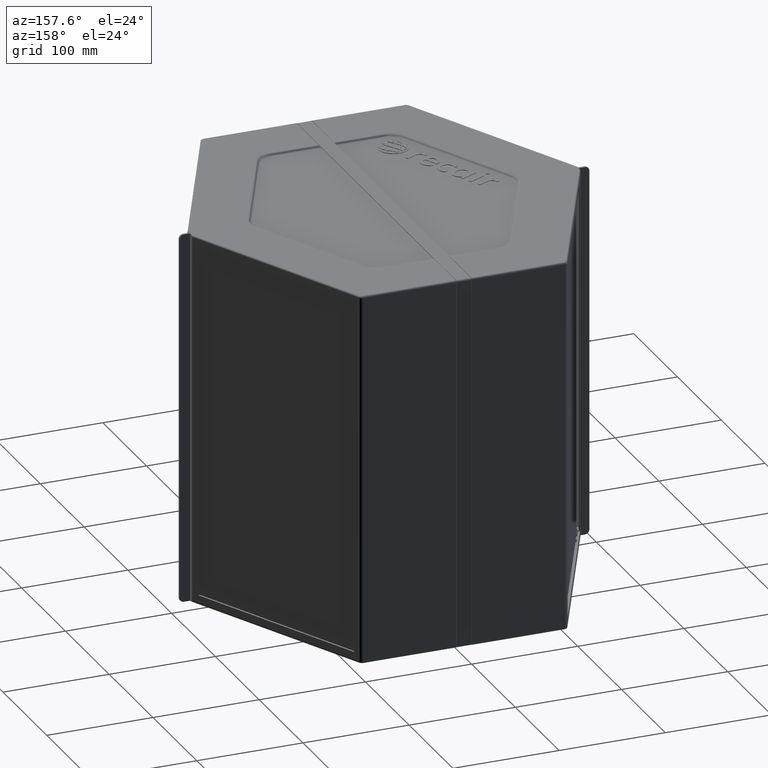
[diagram: clean part render]
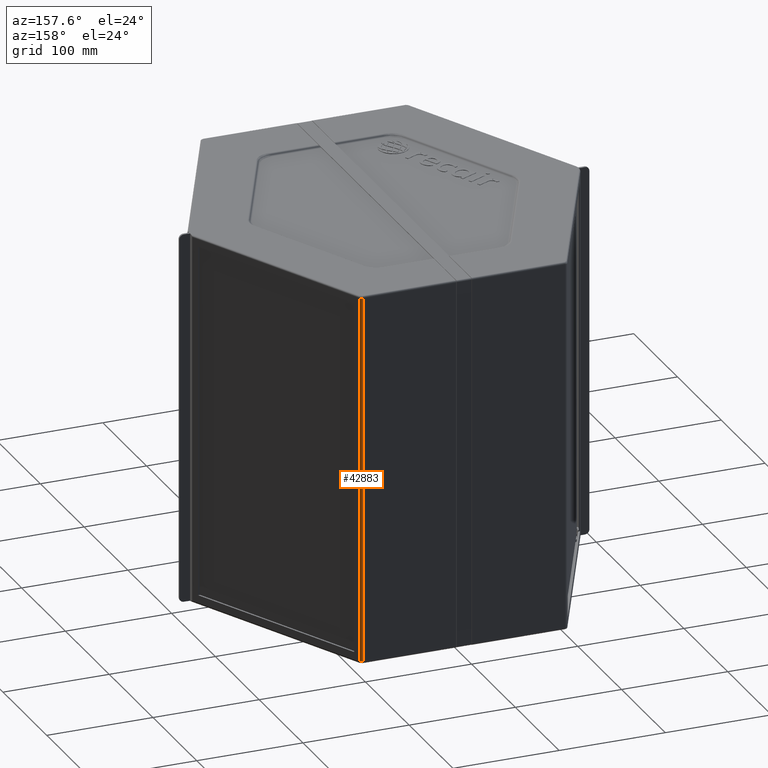
[diagram: same view with one face highlighted and labeled with its STEP entity id]
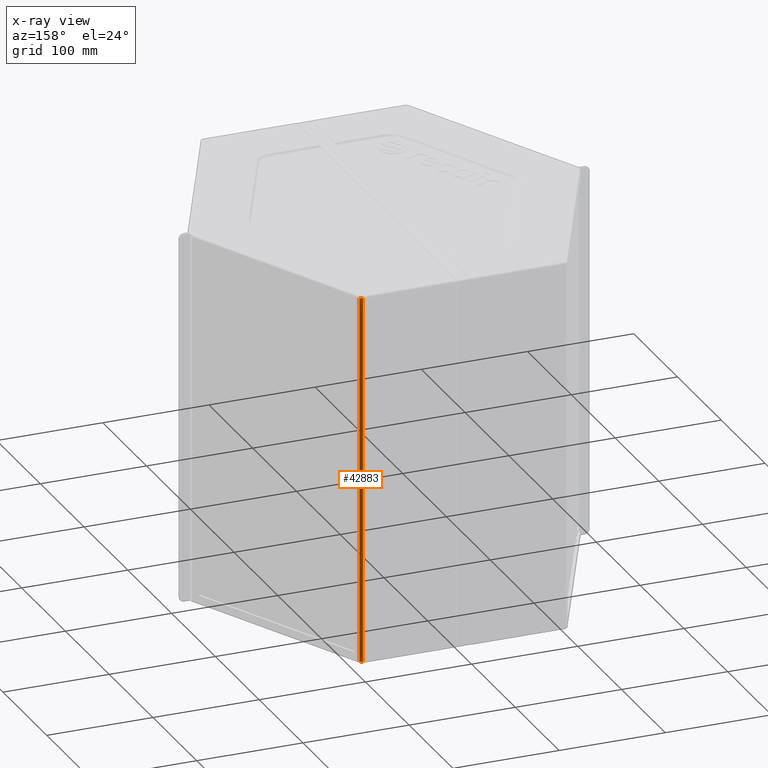
[diagram: x-ray of the same camera — body ghosted, the highlighted face saturated]
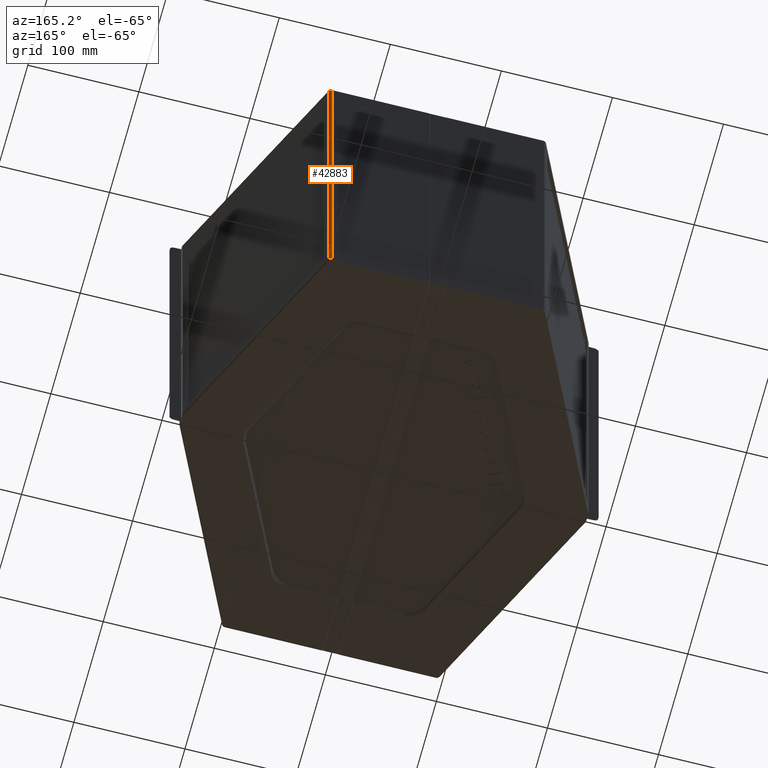
[diagram: same view with one face highlighted and labeled with its STEP entity id]
A machine part, auxiliary view. The second image highlights one B-rep face of the part: STEP entity #42883.
The next image is the same camera in x-ray: the body ghosted, the highlighted face saturated — about 0% of this face is hidden behind the body in this view.
A second angle (auxiliary view) of the same face is appended — the face is thin or edge-on in the first view.
In plain terms, the highlighted cylindrical surface (edge-blend (fillet) strip) has radius 3 mm, axis along (0, 0, -1).
Its self-contained STEP definition (entity closure, byte-faithful):
#573=ELLIPSE('',#44873,3.00099521039378,3.);
#574=ELLIPSE('',#44875,68.7767568781808,3.);
#585=ELLIPSE('',#44947,68.7767568781808,3.);
#599=ELLIPSE('',#45059,68.7767568781808,3.);
#621=ELLIPSE('',#45392,68.7767568781808,3.);
#622=ELLIPSE('',#45393,3.00099521039379,3.);
#4364=FACE_OUTER_BOUND('',#6670,.T.);
#6670=EDGE_LOOP('',(#34109,#34110,#34111,#34112,#34113,#34114,#34115,#34116));
#9047=LINE('',#60234,#13215);
#10124=LINE('',#76377,#14292);
#13215=VECTOR('',#49328,10.);
#14292=VECTOR('',#52067,10.);
#18103=VERTEX_POINT('',#60227);
#18106=VERTEX_POINT('',#60232);
#18734=VERTEX_POINT('',#68346);
#18735=VERTEX_POINT('',#68348);
#18736=VERTEX_POINT('',#68352);
#18854=VERTEX_POINT('',#69160);
#18855=VERTEX_POINT('',#69162);
#19381=VERTEX_POINT('',#76855);
#22447=EDGE_CURVE('',#18103,#18106,#9047,.T.);
#23484=EDGE_CURVE('',#18735,#18734,#573,.T.);
#23486=EDGE_CURVE('',#18736,#18735,#574,.T.);
#23553=EDGE_CURVE('',#18734,#18103,#585,.T.);
#23742=EDGE_CURVE('',#18855,#18854,#599,.T.);
#24512=EDGE_CURVE('',#18736,#18854,#10124,.T.);
#24604=EDGE_CURVE('',#18106,#19381,#621,.T.);
#24605=EDGE_CURVE('',#19381,#18855,#622,.T.);
#34109=ORIENTED_EDGE('',*,*,#24604,.T.);
#34110=ORIENTED_EDGE('',*,*,#24605,.T.);
#34111=ORIENTED_EDGE('',*,*,#23742,.T.);
#34112=ORIENTED_EDGE('',*,*,#24512,.F.);
#34113=ORIENTED_EDGE('',*,*,#23486,.T.);
#34114=ORIENTED_EDGE('',*,*,#23484,.T.);
#34115=ORIENTED_EDGE('',*,*,#23553,.T.);
#34116=ORIENTED_EDGE('',*,*,#22447,.T.);
#39292=CYLINDRICAL_SURFACE('',#45391,3.);
#42883=ADVANCED_FACE('',(#4364),#39292,.T.);
#44873=AXIS2_PLACEMENT_3D('',#68349,#50691,#50692);
#44875=AXIS2_PLACEMENT_3D('',#68353,#50696,#50697);
#44947=AXIS2_PLACEMENT_3D('',#68600,#50865,#50866);
#45059=AXIS2_PLACEMENT_3D('',#69163,#51235,#51236);
#45391=AXIS2_PLACEMENT_3D('',#76854,#52299,#52300);
#45392=AXIS2_PLACEMENT_3D('',#76856,#52301,#52302);
#45393=AXIS2_PLACEMENT_3D('',#76857,#52303,#52304);
#49328=DIRECTION('',(0.,0.,1.));
#50691=DIRECTION('center_axis',(0.0136938673238041,0.0218087503454172,0.999668373214882));
#50692=DIRECTION('ref_axis',(0.531591807028578,0.846609122975993,-0.0257515745909));
#50696=DIRECTION('center_axis',(-0.899840974177145,-0.43403176178455,0.0436193873653228));
#50697=DIRECTION('ref_axis',(0.0392879054002763,0.0189502359717504,0.999048221581858));
#50865=DIRECTION('center_axis',(0.,-0.999048221581858,0.0436193873653228));
#50866=DIRECTION('ref_axis',(0.,0.0436193873653228,0.999048221581858));
#51235=DIRECTION('center_axis',(-0.899840974177145,-0.43403176178455,-0.0436193873653229));
#51236=DIRECTION('ref_axis',(0.0392879054002763,0.0189502359717505,-0.999048221581858));
#52067=DIRECTION('',(0.,0.,1.));
#52299=DIRECTION('center_axis',(0.,1.22464679914735E-16,-1.));
#52300=DIRECTION('ref_axis',(0.531768155588311,0.846889974378139,1.03714109635217E-16));
#52301=DIRECTION('center_axis',(0.,-0.999048221581858,-0.043619387365323));
#52302=DIRECTION('ref_axis',(0.,0.043619387365323,-0.999048221581858));
#52303=DIRECTION('center_axis',(0.013693867323784,0.0218087503456225,-0.999668373214878));
#52304=DIRECTION('ref_axis',(0.531591807024429,0.846609122978593,0.0257515745910631));
#60227=CARTESIAN_POINT('',(95.2592710903839,183.,2.));
#60232=CARTESIAN_POINT('',(95.2592710903839,183.,348.));
#60234=CARTESIAN_POINT('',(95.2592710903839,183.,175.));
#68346=CARTESIAN_POINT('',(95.261063639151,182.999999464462,1.99998773415006));
#68348=CARTESIAN_POINT('',(97.9605865616824,181.30495008507,1.99998773414966));
#68349=CARTESIAN_POINT('Origin',(95.2592710903838,180.,2.06546023286614));
#68352=CARTESIAN_POINT('',(97.9613658083516,181.303335772213,1.99999999999991));
#68353=CARTESIAN_POINT('Origin',(95.2592710903838,180.,-66.7112966453148));
#68600=CARTESIAN_POINT('Origin',(95.2592710903838,180.,-66.7112966453145));
#69160=CARTESIAN_POINT('',(97.9613658083517,181.303335772213,348.000000000002));
#69162=CARTESIAN_POINT('',(97.9605865616825,181.304950085069,348.000012265851));
#69163=CARTESIAN_POINT('Origin',(95.2592710903839,180.,416.711296645316));
#76377=CARTESIAN_POINT('',(97.9613658083516,181.303335772213,175.));
#76854=CARTESIAN_POINT('Origin',(95.2592710903839,180.,350.));
#76855=CARTESIAN_POINT('',(95.2610636391511,182.999999464461,348.000012265851));
#76856=CARTESIAN_POINT('Origin',(95.2592710903839,180.,416.711296645315));
#76857=CARTESIAN_POINT('Origin',(95.2592710903839,180.,347.934539767134));